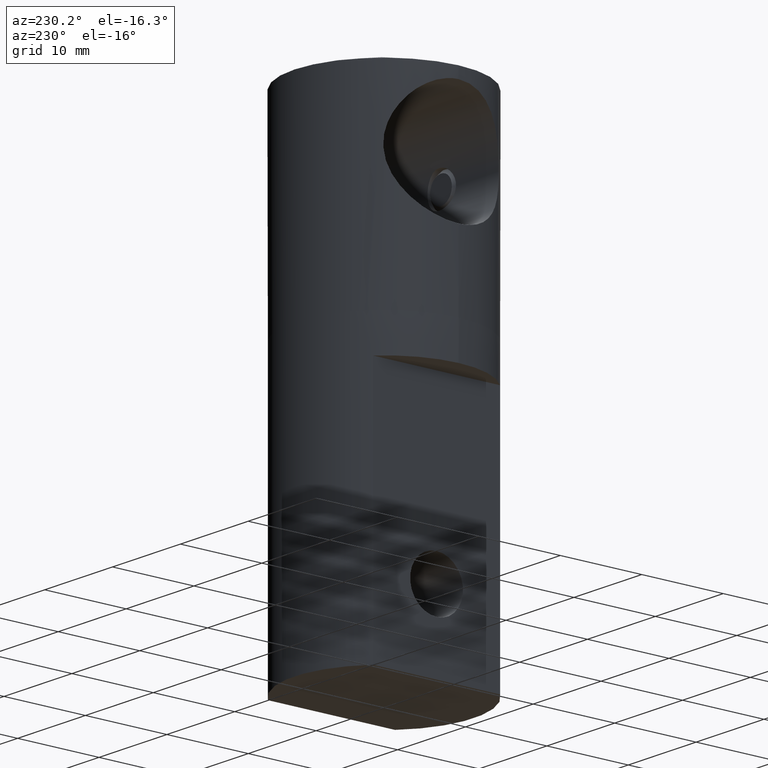
[diagram: clean part render]
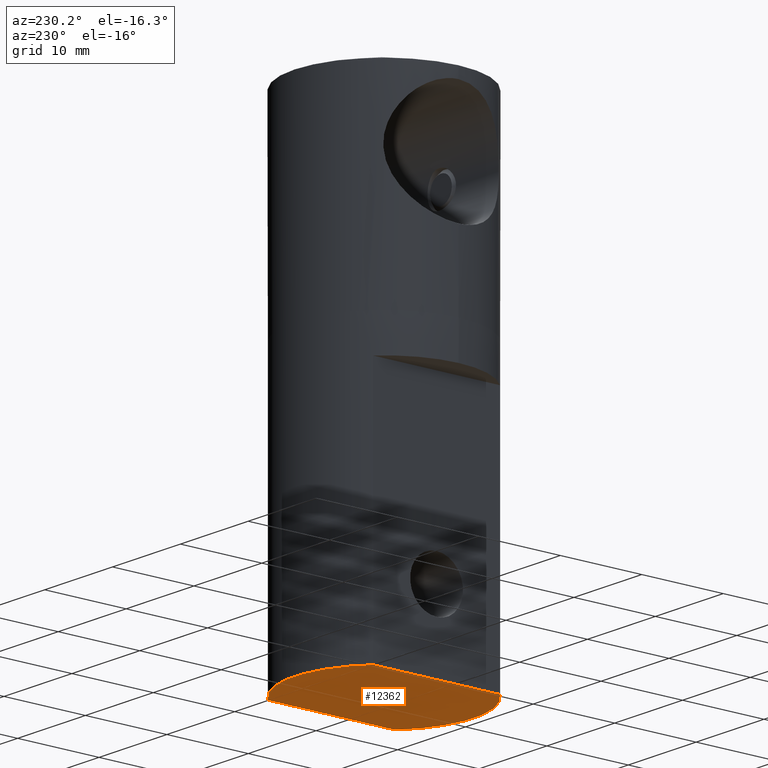
[diagram: same view with one face highlighted and labeled with its STEP entity id]
A machine part, auxiliary view. The second image highlights one B-rep face of the part: STEP entity #12362.
In plain terms, the highlighted planar face has unit normal (0, 0, 1).
Its self-contained STEP definition (entity closure, byte-faithful):
#691 = CARTESIAN_POINT ( 'NONE',  ( 7.750000000000002665, 7.806247497997993889, -34.89999999999999858 ) ) ;
#951 = VECTOR ( 'NONE', #3547, 1000.000000000000000 ) ;
#1448 = VERTEX_POINT ( 'NONE', #3057 ) ;
#2913 = ORIENTED_EDGE ( 'NONE', *, *, #13596, .F. ) ;
#3057 = CARTESIAN_POINT ( 'NONE',  ( 7.749999999999999112, -7.806247497997998330, -34.89999999999999858 ) ) ;
#3061 = AXIS2_PLACEMENT_3D ( 'NONE', #3758, #5082, #13005 ) ;
#3343 = EDGE_CURVE ( 'NONE', #1448, #16463, #16686, .T. ) ;
#3547 = DIRECTION ( 'NONE',  ( 0.000000000000000000, -1.000000000000000000, 0.000000000000000000 ) ) ;
#3758 = CARTESIAN_POINT ( 'NONE',  ( 0.000000000000000000, 0.000000000000000000, -34.89999999999999858 ) ) ;
#4272 = FACE_OUTER_BOUND ( 'NONE', #8572, .T. ) ;
#4322 = CARTESIAN_POINT ( 'NONE',  ( -7.750000000000000888, 7.806247497997996554, -34.89999999999999858 ) ) ;
#5082 = DIRECTION ( 'NONE',  ( 0.000000000000000000, 0.000000000000000000, 1.000000000000000000 ) ) ;
#5998 = DIRECTION ( 'NONE',  ( 1.000000000000000000, 0.000000000000000000, 0.000000000000000000 ) ) ;
#6143 = CARTESIAN_POINT ( 'NONE',  ( 7.750000000000002665, 7.806247497997993889, -34.89999999999999858 ) ) ;
#6235 = CARTESIAN_POINT ( 'NONE',  ( -7.750000000000000888, -7.806247497997995666, -34.89999999999999858 ) ) ;
#6463 = VERTEX_POINT ( 'NONE', #4322 ) ;
#7201 = PLANE ( 'NONE',  #11815 ) ;
#7309 = ORIENTED_EDGE ( 'NONE', *, *, #14824, .F. ) ;
#7523 = CARTESIAN_POINT ( 'NONE',  ( -7.750000000000000888, 7.806247497997995666, -34.89999999999999858 ) ) ;
#8572 = EDGE_LOOP ( 'NONE', ( #2913, #14449, #7309, #12007 ) ) ;
#9870 = CARTESIAN_POINT ( 'NONE',  ( 0.000000000000000000, 0.000000000000000000, -34.89999999999999858 ) ) ;
#11257 = DIRECTION ( 'NONE',  ( 0.000000000000000000, 0.000000000000000000, 1.000000000000000000 ) ) ;
#11815 = AXIS2_PLACEMENT_3D ( 'NONE', #9870, #11257, #12545 ) ;
#12007 = ORIENTED_EDGE ( 'NONE', *, *, #3343, .F. ) ;
#12362 = ADVANCED_FACE ( 'NONE', ( #4272 ), #7201, .F. ) ;
#12545 = DIRECTION ( 'NONE',  ( 1.000000000000000000, 0.000000000000000000, -0.000000000000000000 ) ) ;
#12738 = VECTOR ( 'NONE', #15294, 1000.000000000000000 ) ;
#12867 = AXIS2_PLACEMENT_3D ( 'NONE', #13964, #16754, #5998 ) ;
#13005 = DIRECTION ( 'NONE',  ( 1.000000000000000000, 0.000000000000000000, 0.000000000000000000 ) ) ;
#13596 = EDGE_CURVE ( 'NONE', #17022, #1448, #14669, .T. ) ;
#13964 = CARTESIAN_POINT ( 'NONE',  ( 0.000000000000000000, 0.000000000000000000, -34.89999999999999858 ) ) ;
#14035 = CIRCLE ( 'NONE', #12867, 11.00000000000000000 ) ;
#14449 = ORIENTED_EDGE ( 'NONE', *, *, #17037, .F. ) ;
#14669 = CIRCLE ( 'NONE', #3061, 11.00000000000000000 ) ;
#14824 = EDGE_CURVE ( 'NONE', #16463, #6463, #14035, .T. ) ;
#15294 = DIRECTION ( 'NONE',  ( 2.222224540564077178E-16, 1.000000000000000000, -0.000000000000000000 ) ) ;
#16291 = LINE ( 'NONE', #7523, #951 ) ;
#16463 = VERTEX_POINT ( 'NONE', #6143 ) ;
#16686 = LINE ( 'NONE', #691, #12738 ) ;
#16754 = DIRECTION ( 'NONE',  ( 0.000000000000000000, 0.000000000000000000, 1.000000000000000000 ) ) ;
#17022 = VERTEX_POINT ( 'NONE', #6235 ) ;
#17037 = EDGE_CURVE ( 'NONE', #6463, #17022, #16291, .T. ) ;